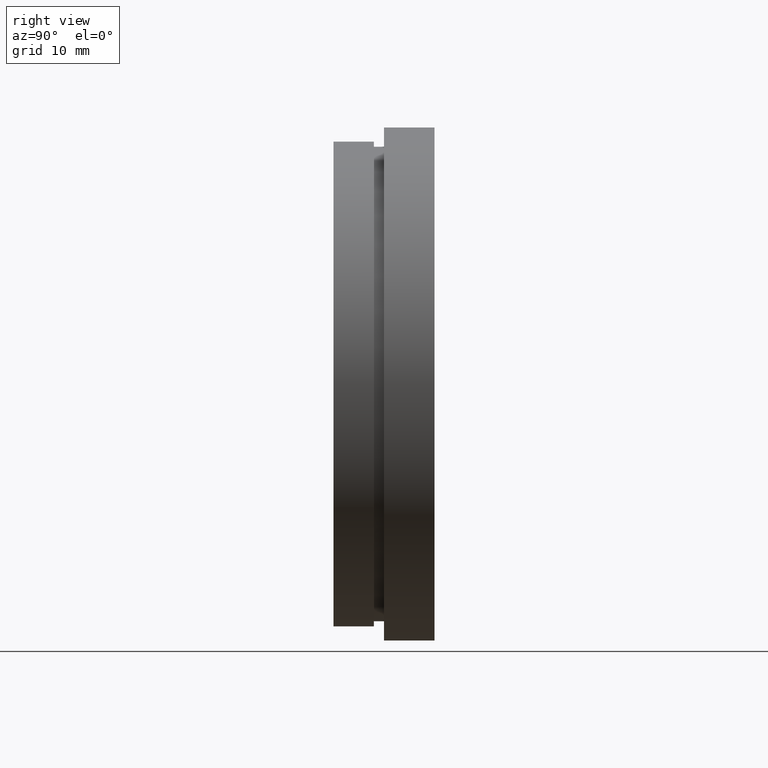
[diagram: clean part render]
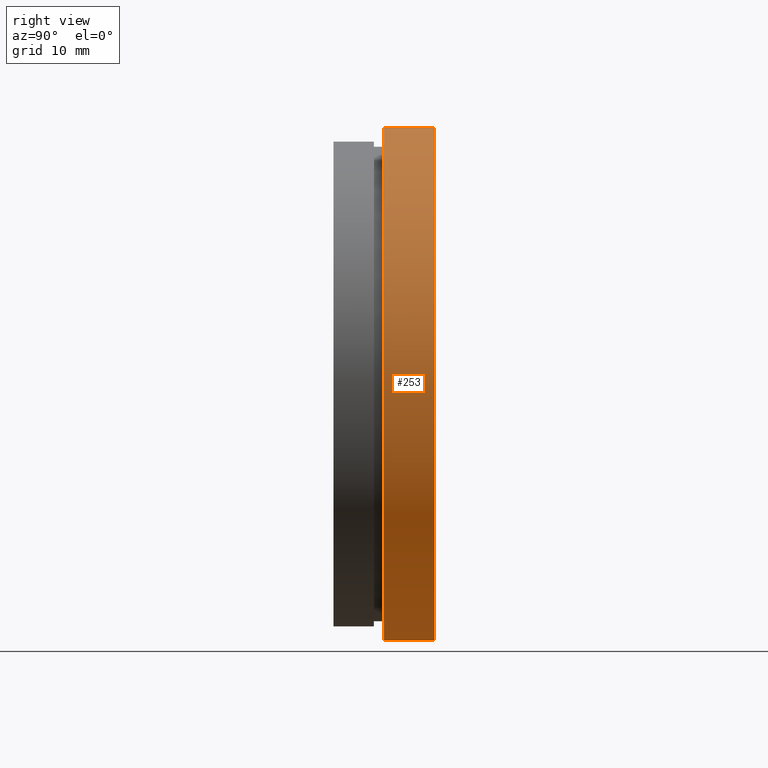
[diagram: same view with one face highlighted and labeled with its STEP entity id]
A machine part, right view. The second image highlights one B-rep face of the part: STEP entity #253.
In plain terms, the highlighted cylindrical surface (partial cylindrical patch) has radius 25.4 mm, axis along (-0, 1, -0).
Its self-contained STEP definition (entity closure, byte-faithful):
#42 = VERTEX_POINT ( 'NONE', #128 ) ;
#45 = AXIS2_PLACEMENT_3D ( 'NONE', #597, #52, #578 ) ;
#52 = DIRECTION ( 'NONE',  ( -0.0000000000000000000, 1.000000000000000000, -0.0000000000000000000 ) ) ;
#53 = VERTEX_POINT ( 'NONE', #465 ) ;
#61 = DIRECTION ( 'NONE',  ( 0.0000000000000000000, 0.0000000000000000000, 1.000000000000000000 ) ) ;
#99 = VERTEX_POINT ( 'NONE', #378 ) ;
#112 = FACE_OUTER_BOUND ( 'NONE', #347, .T. ) ;
#120 = AXIS2_PLACEMENT_3D ( 'NONE', #571, #196, #61 ) ;
#128 = CARTESIAN_POINT ( 'NONE',  ( 3.110602869834276900E-015, 10.00000000000000000, -25.39999999999999900 ) ) ;
#143 = CARTESIAN_POINT ( 'NONE',  ( 0.0000000000000000000, 10.00000000000000000, 0.0000000000000000000 ) ) ;
#167 = CARTESIAN_POINT ( 'NONE',  ( 0.0000000000000000000, 17.41929831819392000, 25.39999999999999900 ) ) ;
#173 = ORIENTED_EDGE ( 'NONE', *, *, #392, .T. ) ;
#196 = DIRECTION ( 'NONE',  ( -0.0000000000000000000, 1.000000000000000000, -0.0000000000000000000 ) ) ;
#207 = DIRECTION ( 'NONE',  ( -0.0000000000000000000, 1.000000000000000000, -0.0000000000000000000 ) ) ;
#249 = LINE ( 'NONE', #414, #346 ) ;
#253 = ADVANCED_FACE ( 'NONE', ( #112 ), #327, .T. ) ;
#261 = ORIENTED_EDGE ( 'NONE', *, *, #563, .F. ) ;
#327 = CYLINDRICAL_SURFACE ( 'NONE', #45, 25.39999999999999900 ) ;
#346 = VECTOR ( 'NONE', #482, 1000.000000000000000 ) ;
#347 = EDGE_LOOP ( 'NONE', ( #387, #173, #457, #261 ) ) ;
#356 = CIRCLE ( 'NONE', #574, 25.39999999999999900 ) ;
#378 = CARTESIAN_POINT ( 'NONE',  ( 0.0000000000000000000, 10.00000000000000000, 25.39999999999999900 ) ) ;
#387 = ORIENTED_EDGE ( 'NONE', *, *, #505, .T. ) ;
#392 = EDGE_CURVE ( 'NONE', #53, #42, #249, .T. ) ;
#414 = CARTESIAN_POINT ( 'NONE',  ( 3.110602869834276900E-015, 17.41929831819392000, -25.39999999999999900 ) ) ;
#437 = LINE ( 'NONE', #167, #523 ) ;
#444 = EDGE_CURVE ( 'NONE', #99, #42, #356, .T. ) ;
#453 = VERTEX_POINT ( 'NONE', #467 ) ;
#457 = ORIENTED_EDGE ( 'NONE', *, *, #444, .F. ) ;
#461 = DIRECTION ( 'NONE',  ( 0.0000000000000000000, 0.0000000000000000000, 1.000000000000000000 ) ) ;
#465 = CARTESIAN_POINT ( 'NONE',  ( 3.110602869834276900E-015, 5.000000000000000900, -25.39999999999999900 ) ) ;
#467 = CARTESIAN_POINT ( 'NONE',  ( 0.0000000000000000000, 5.000000000000000900, 25.39999999999999900 ) ) ;
#478 = CIRCLE ( 'NONE', #120, 25.39999999999999900 ) ;
#482 = DIRECTION ( 'NONE',  ( -0.0000000000000000000, 1.000000000000000000, -0.0000000000000000000 ) ) ;
#500 = DIRECTION ( 'NONE',  ( -0.0000000000000000000, 1.000000000000000000, -0.0000000000000000000 ) ) ;
#505 = EDGE_CURVE ( 'NONE', #453, #53, #478, .T. ) ;
#523 = VECTOR ( 'NONE', #500, 1000.000000000000000 ) ;
#563 = EDGE_CURVE ( 'NONE', #453, #99, #437, .T. ) ;
#571 = CARTESIAN_POINT ( 'NONE',  ( 0.0000000000000000000, 5.000000000000000900, 0.0000000000000000000 ) ) ;
#574 = AXIS2_PLACEMENT_3D ( 'NONE', #143, #207, #461 ) ;
#578 = DIRECTION ( 'NONE',  ( 0.0000000000000000000, 0.0000000000000000000, 1.000000000000000000 ) ) ;
#597 = CARTESIAN_POINT ( 'NONE',  ( 0.0000000000000000000, 17.41929831819392000, 0.0000000000000000000 ) ) ;